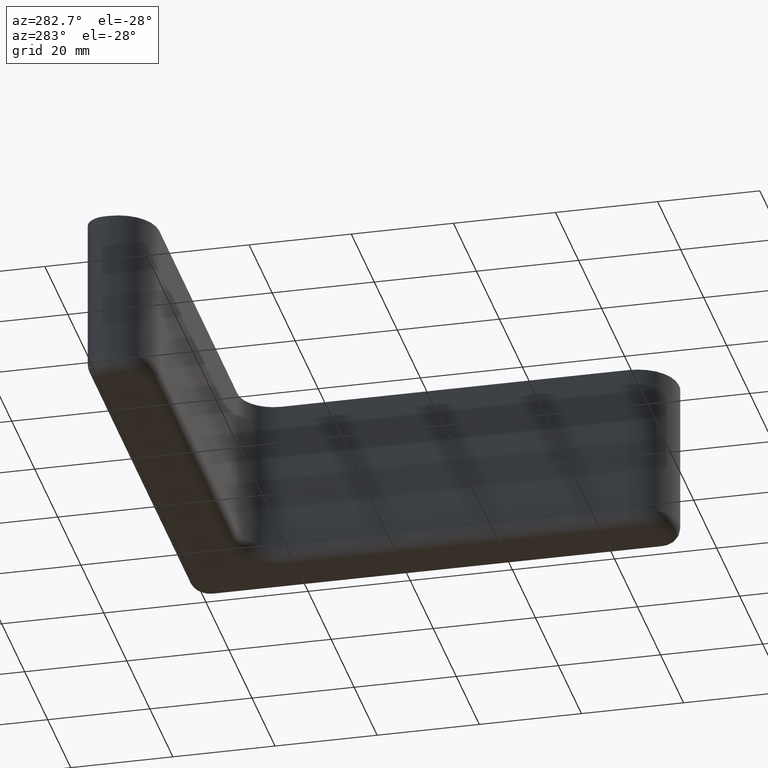
[diagram: clean part render]
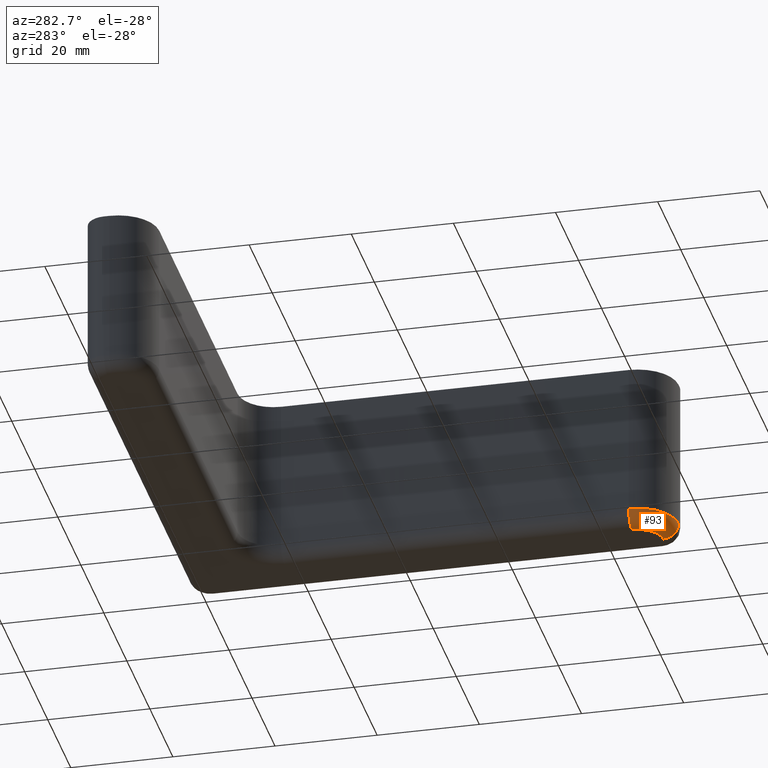
[diagram: same view with one face highlighted and labeled with its STEP entity id]
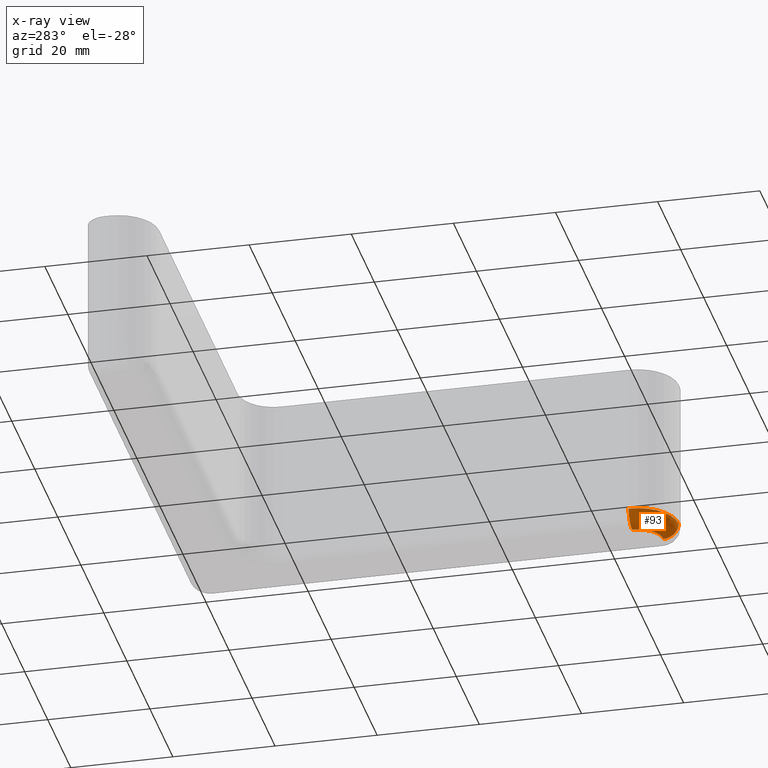
[diagram: x-ray of the same camera — body ghosted, the highlighted face saturated]
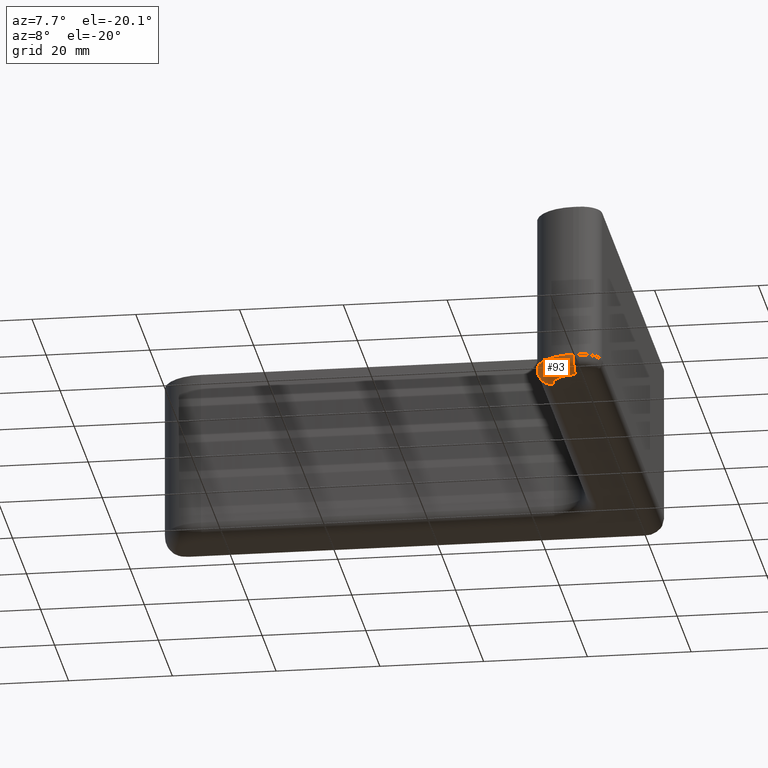
[diagram: same view with one face highlighted and labeled with its STEP entity id]
A machine part, auxiliary view. The second image highlights one B-rep face of the part: STEP entity #93.
The next image is the same camera in x-ray: the body ghosted, the highlighted face saturated — about 0% of this face is hidden behind the body in this view.
A second angle (auxiliary view) of the same face is appended — the face is thin or edge-on in the first view.
In plain terms, the highlighted toroidal blend (fillet) surface has major radius 5 mm and minor (blend) radius 3 mm.
Its self-contained STEP definition (entity closure, byte-faithful):
#93 = ADVANCED_FACE( '', ( #152 ), #153, .T. );
#152 = FACE_OUTER_BOUND( '', #276, .T. );
#153 = TOROIDAL_SURFACE( '', #277, 5.00000000000000, 3.00000000000000 );
#276 = EDGE_LOOP( '', ( #471, #472, #473, #474 ) );
#277 = AXIS2_PLACEMENT_3D( '', #475, #476, #477 );
#471 = ORIENTED_EDGE( '', *, *, #697, .T. );
#472 = ORIENTED_EDGE( '', *, *, #676, .T. );
#473 = ORIENTED_EDGE( '', *, *, #620, .F. );
#474 = ORIENTED_EDGE( '', *, *, #698, .T. );
#475 = CARTESIAN_POINT( '', ( -2.00000000000002, -85.0000000000000, -30.0000000000000 ) );
#476 = DIRECTION( '', ( 3.58678896750442E-017, -8.65927457071936E-017, 1.00000000000000 ) );
#477 = DIRECTION( '', ( -1.00000000000000, 1.06733799631484E-048, 3.58678896750442E-017 ) );
#620 = EDGE_CURVE( '', #717, #719, #720, .T. );
#676 = EDGE_CURVE( '', #822, #719, #823, .T. );
#697 = EDGE_CURVE( '', #777, #822, #853, .T. );
#698 = EDGE_CURVE( '', #717, #777, #854, .T. );
#717 = VERTEX_POINT( '', #873 );
#719 = VERTEX_POINT( '', #876 );
#720 = CIRCLE( '', #877, 3.00000000000001 );
#777 = VERTEX_POINT( '', #951 );
#822 = VERTEX_POINT( '', #1010 );
#823 = CIRCLE( '', #1011, 5.00000000000000 );
#853 = CIRCLE( '', #1048, 3.00000000000000 );
#854 = CIRCLE( '', #1049, 8.00000000000000 );
#873 = CARTESIAN_POINT( '', ( -2.00000000000001, -93.0000000000000, -30.0000000000000 ) );
#876 = CARTESIAN_POINT( '', ( -2.00000000000002, -90.0000000000000, -33.0000000000000 ) );
#877 = AXIS2_PLACEMENT_3D( '', #1084, #1085, #1086 );
#951 = CARTESIAN_POINT( '', ( -10.0000000000000, -85.0000000000000, -30.0000000000000 ) );
#1010 = CARTESIAN_POINT( '', ( -7.00000000000001, -85.0000000000000, -33.0000000000000 ) );
#1011 = AXIS2_PLACEMENT_3D( '', #1190, #1191, #1192 );
#1048 = AXIS2_PLACEMENT_3D( '', #1239, #1240, #1241 );
#1049 = AXIS2_PLACEMENT_3D( '', #1242, #1243, #1244 );
#1084 = CARTESIAN_POINT( '', ( -2.00000000000002, -90.0000000000000, -30.0000000000000 ) );
#1085 = DIRECTION( '', ( 1.00000000000000, 2.77555756156289E-016, -3.58678896750441E-017 ) );
#1086 = DIRECTION( '', ( 2.77555756156289E-016, -1.00000000000000, -8.65927457071936E-017 ) );
#1190 = CARTESIAN_POINT( '', ( -2.00000000000002, -85.0000000000000, -33.0000000000000 ) );
#1191 = DIRECTION( '', ( 3.58678896750442E-017, -8.65927457071936E-017, 1.00000000000000 ) );
#1192 = DIRECTION( '', ( -0.707106781186547, -0.707106781186548, -3.58678896750443E-017 ) );
#1239 = CARTESIAN_POINT( '', ( -7.00000000000001, -85.0000000000000, -30.0000000000000 ) );
#1240 = DIRECTION( '', ( 0.000000000000000, -1.00000000000000, -8.65927457071935E-017 ) );
#1241 = DIRECTION( '', ( -1.00000000000000, -3.10589904968477E-033, 3.58678896750442E-017 ) );
#1242 = CARTESIAN_POINT( '', ( -2.00000000000002, -85.0000000000000, -30.0000000000000 ) );
#1243 = DIRECTION( '', ( -3.58678896750442E-017, 8.65927457071936E-017, -1.00000000000000 ) );
#1244 = DIRECTION( '', ( -0.707106781186547, -0.707106781186548, -3.58678896750443E-017 ) );